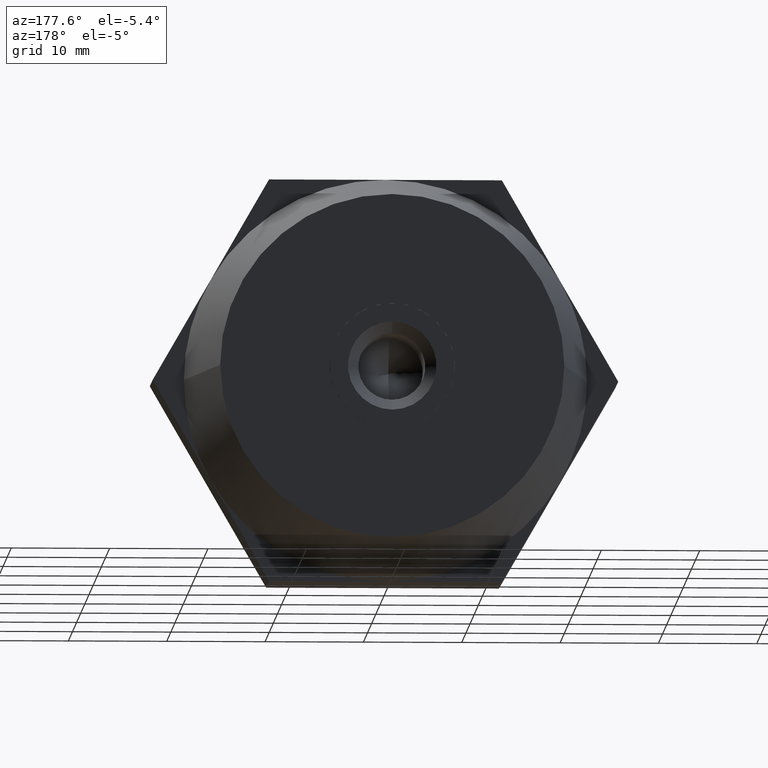
[diagram: clean part render]
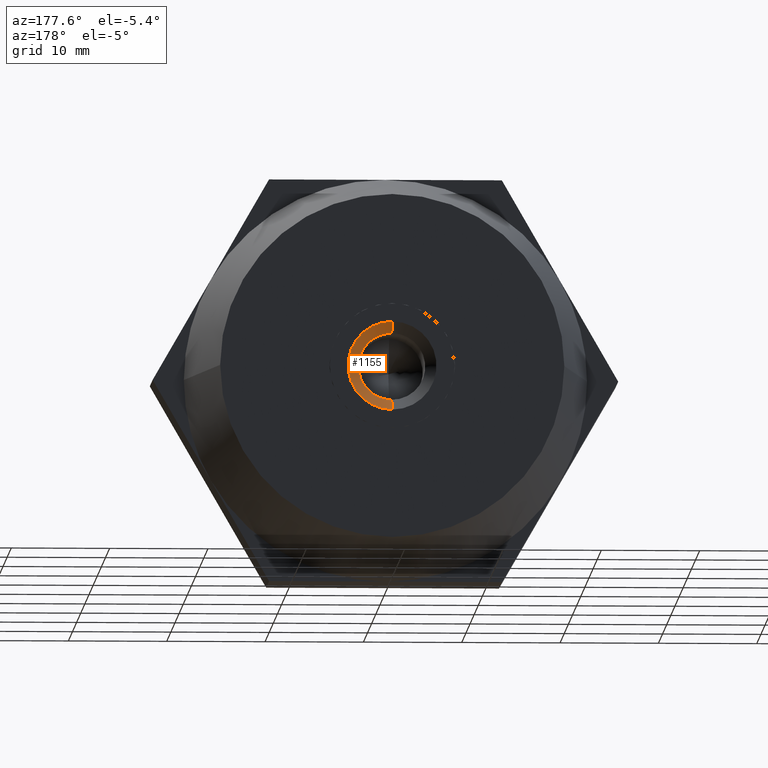
[diagram: same view with one face highlighted and labeled with its STEP entity id]
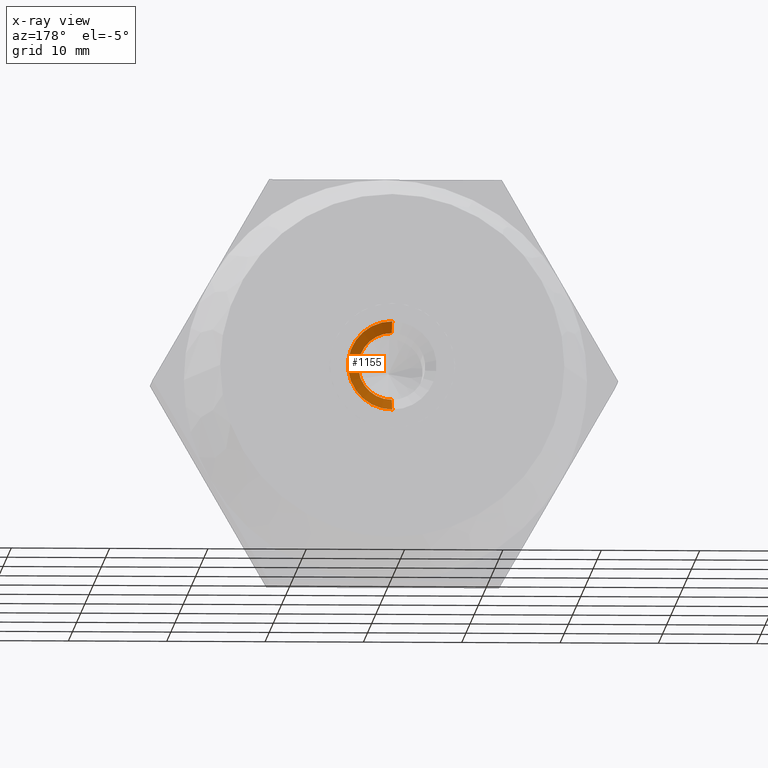
[diagram: x-ray of the same camera — body ghosted, the highlighted face saturated]
A machine part, auxiliary view. The second image highlights one B-rep face of the part: STEP entity #1155.
The next image is the same camera in x-ray: the body ghosted, the highlighted face saturated — about 0% of this face is hidden behind the body in this view.
In plain terms, the highlighted conical surface has half-angle 45 deg.
Its self-contained STEP definition (entity closure, byte-faithful):
#52 = AXIS2_PLACEMENT_3D ( 'NONE', #271, #520, #571 ) ;
#59 = CARTESIAN_POINT ( 'NONE',  ( 0.0000000000000000000, 10.00000000000000000, 4.500000000000000000 ) ) ;
#271 = CARTESIAN_POINT ( 'NONE',  ( 0.0000000000000000000, 10.00000000000000000, 0.0000000000000000000 ) ) ;
#347 = EDGE_CURVE ( 'NONE', #2651, #2288, #2776, .T. ) ;
#520 = DIRECTION ( 'NONE',  ( 0.0000000000000000000, 1.000000000000000000, 0.0000000000000000000 ) ) ;
#538 = AXIS2_PLACEMENT_3D ( 'NONE', #3551, #3510, #2377 ) ;
#571 = DIRECTION ( 'NONE',  ( 0.0000000000000000000, 0.0000000000000000000, 1.000000000000000000 ) ) ;
#574 = ORIENTED_EDGE ( 'NONE', *, *, #3507, .T. ) ;
#623 = EDGE_LOOP ( 'NONE', ( #2643, #3025, #3287, #574 ) ) ;
#645 = CARTESIAN_POINT ( 'NONE',  ( 5.510910596163088600E-016, 10.00000000000000000, -4.500000000000000000 ) ) ;
#685 = CARTESIAN_POINT ( 'NONE',  ( 0.0000000000000000000, 8.900000000000000400, 3.399999999999999900 ) ) ;
#832 = VERTEX_POINT ( 'NONE', #2143 ) ;
#1018 = CIRCLE ( 'NONE', #3563, 3.399999999999999900 ) ;
#1022 = VECTOR ( 'NONE', #1507, 1000.000000000000100 ) ;
#1136 = CARTESIAN_POINT ( 'NONE',  ( 0.0000000000000000000, 8.900000000000000400, 0.0000000000000000000 ) ) ;
#1155 = ADVANCED_FACE ( 'NONE', ( #3054 ), #1990, .F. ) ;
#1190 = VERTEX_POINT ( 'NONE', #2583 ) ;
#1282 = CIRCLE ( 'NONE', #538, 4.500000000000000000 ) ;
#1364 = EDGE_CURVE ( 'NONE', #832, #1190, #2592, .T. ) ;
#1374 = DIRECTION ( 'NONE',  ( 0.0000000000000000000, 1.000000000000000000, 0.0000000000000000000 ) ) ;
#1507 = DIRECTION ( 'NONE',  ( 8.659560562354931600E-017, 0.7071067811865474600, -0.7071067811865474600 ) ) ;
#1652 = CARTESIAN_POINT ( 'NONE',  ( 0.0000000000000000000, 10.00000000000000000, 4.500000000000000000 ) ) ;
#1990 = CONICAL_SURFACE ( 'NONE', #52, 4.500000000000000000, 0.7853981633974482800 ) ;
#2073 = VECTOR ( 'NONE', #2988, 1000.000000000000100 ) ;
#2143 = CARTESIAN_POINT ( 'NONE',  ( 4.163799117101000600E-016, 8.900000000000000400, -3.399999999999999900 ) ) ;
#2288 = VERTEX_POINT ( 'NONE', #1652 ) ;
#2377 = DIRECTION ( 'NONE',  ( 0.0000000000000000000, 0.0000000000000000000, 1.000000000000000000 ) ) ;
#2583 = CARTESIAN_POINT ( 'NONE',  ( 5.510910596163088600E-016, 10.00000000000000000, -4.500000000000000000 ) ) ;
#2592 = LINE ( 'NONE', #645, #1022 ) ;
#2643 = ORIENTED_EDGE ( 'NONE', *, *, #1364, .F. ) ;
#2651 = VERTEX_POINT ( 'NONE', #685 ) ;
#2752 = DIRECTION ( 'NONE',  ( 0.0000000000000000000, 0.0000000000000000000, 1.000000000000000000 ) ) ;
#2776 = LINE ( 'NONE', #59, #2073 ) ;
#2798 = EDGE_CURVE ( 'NONE', #2651, #832, #1018, .T. ) ;
#2988 = DIRECTION ( 'NONE',  ( 0.0000000000000000000, 0.7071067811865474600, 0.7071067811865474600 ) ) ;
#3025 = ORIENTED_EDGE ( 'NONE', *, *, #2798, .F. ) ;
#3054 = FACE_OUTER_BOUND ( 'NONE', #623, .T. ) ;
#3287 = ORIENTED_EDGE ( 'NONE', *, *, #347, .T. ) ;
#3507 = EDGE_CURVE ( 'NONE', #2288, #1190, #1282, .T. ) ;
#3510 = DIRECTION ( 'NONE',  ( 0.0000000000000000000, 1.000000000000000000, 0.0000000000000000000 ) ) ;
#3551 = CARTESIAN_POINT ( 'NONE',  ( 0.0000000000000000000, 10.00000000000000000, 0.0000000000000000000 ) ) ;
#3563 = AXIS2_PLACEMENT_3D ( 'NONE', #1136, #1374, #2752 ) ;